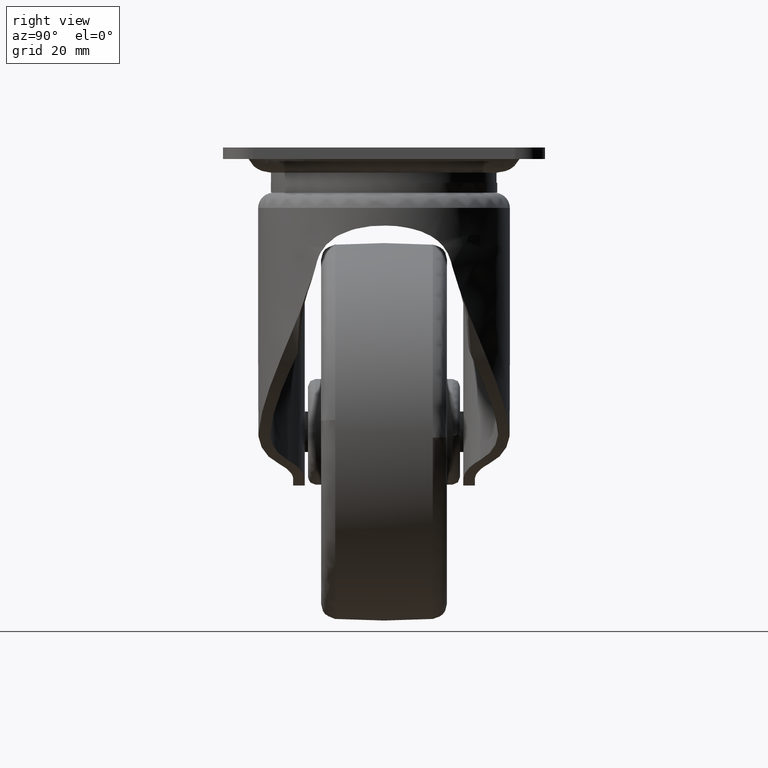
[diagram: clean part render]
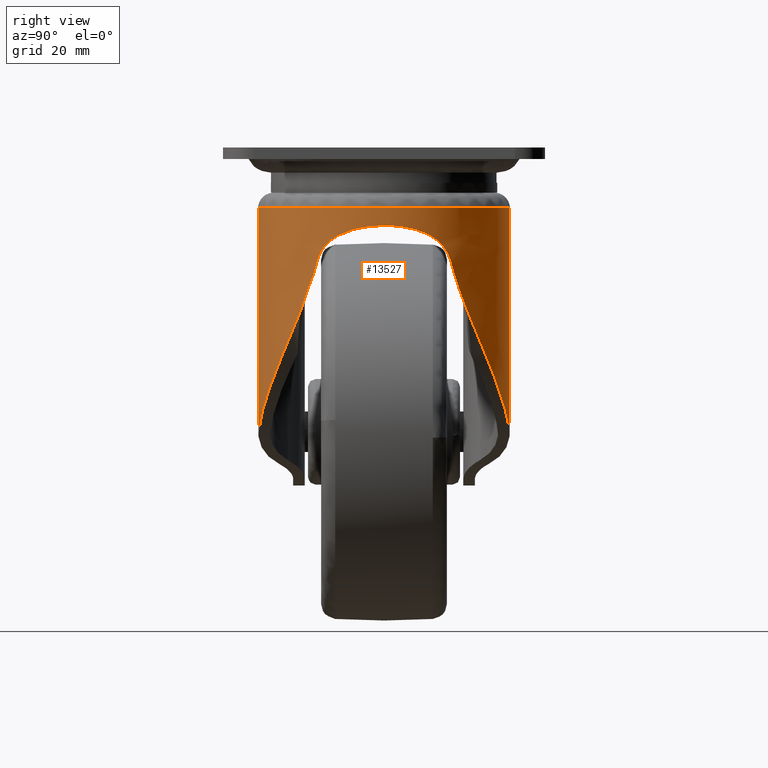
[diagram: same view with one face highlighted and labeled with its STEP entity id]
A machine part, right view. The second image highlights one B-rep face of the part: STEP entity #13527.
In plain terms, the highlighted face is a freeform B-spline surface patch.
Its self-contained STEP definition (entity closure, byte-faithful):
#7843=CARTESIAN_POINT('',(7.653790E-016,-25.0,-41.716169822662103));
#7844=VERTEX_POINT('',#7843);
#7845=CARTESIAN_POINT('',(1.488359608596842,-24.955656386388601,-56.877323111152997));
#7846=VERTEX_POINT('',#7845);
#7847=CARTESIAN_POINT('',(7.653790E-016,-25.0,-41.716169822662103));
#7848=CARTESIAN_POINT('',(0.496031628087031,-24.999999999999979,-46.769922830621191));
#7849=CARTESIAN_POINT('',(0.992062944574895,-24.985255604184150,-51.823677522669051));
#7850=CARTESIAN_POINT('',(1.488359608596832,-24.955656386388601,-56.877323111152997));
#7851=QUASI_UNIFORM_CURVE('',3,(#7847,#7848,#7849,#7850),.UNSPECIFIED.,.F.,.U.);
#7852=EDGE_CURVE('',#7844,#7846,#7851,.T.);
#7895=CARTESIAN_POINT('',(1.488359608609230,24.955656386387851,-56.877323111142900));
#7896=VERTEX_POINT('',#7895);
#7904=CARTESIAN_POINT('',(-4.592274E-015,25.0,-41.716169822662003));
#7905=VERTEX_POINT('',#7904);
#7913=CARTESIAN_POINT('',(1.488359608609230,24.955656386387851,-56.877323111142900));
#7914=CARTESIAN_POINT('',(0.992062944573111,24.985255604184189,-51.823677522650250));
#7915=CARTESIAN_POINT('',(0.496031628088499,24.999999999999641,-46.769922830611549));
#7916=CARTESIAN_POINT('',(-4.592274E-015,25.0,-41.716169822662003));
#7917=QUASI_UNIFORM_CURVE('',3,(#7913,#7914,#7915,#7916),.UNSPECIFIED.,.F.,.U.);
#7918=EDGE_CURVE('',#7896,#7905,#7917,.T.);
#8096=CARTESIAN_POINT('',(18.690029135491798,-16.603698711867551,-32.490432487258737));
#8097=VERTEX_POINT('',#8096);
#8098=CARTESIAN_POINT('',(20.725246967792451,-13.980773359463919,-25.113831304999898));
#8099=VERTEX_POINT('',#8098);
#8100=CARTESIAN_POINT('',(18.690029135491798,-16.603698711867551,-32.490432487258737));
#8101=CARTESIAN_POINT('',(18.742552751650312,-16.544573652720821,-32.341464797130541));
#8102=CARTESIAN_POINT('',(18.791352158325950,-16.489089796606759,-32.190038551120452));
#8103=CARTESIAN_POINT('',(18.885290464308142,-16.381413175482880,-31.884872217573701));
#8104=CARTESIAN_POINT('',(18.930348940905759,-16.329304845412079,-31.731074808991870));
#8105=CARTESIAN_POINT('',(19.062407073013141,-16.175367154058019,-31.267873422957731));
#8106=CARTESIAN_POINT('',(19.146350661715068,-16.075873347708999,-30.956892221726111));
#8107=CARTESIAN_POINT('',(19.312812535816519,-15.875500720663100,-30.335010879632922));
#8108=CARTESIAN_POINT('',(19.395227765904671,-15.774723295864581,-30.024048203463948));
#8109=CARTESIAN_POINT('',(19.561382207833841,-15.568201375888790,-29.404169856059010));
#8110=CARTESIAN_POINT('',(19.645097751330368,-15.462473516057290,-29.095242080023802));
#8111=CARTESIAN_POINT('',(19.814584227224088,-15.244672107415800,-28.480101002270271));
#8112=CARTESIAN_POINT('',(19.900348593343889,-15.132594590757069,-28.173876412490110));
#8113=CARTESIAN_POINT('',(20.072966687800641,-14.902856614295150,-27.563664499838829));
#8114=CARTESIAN_POINT('',(20.159810425854928,-14.785194435634040,-27.259765900474811));
#8115=CARTESIAN_POINT('',(20.331962812285241,-14.547544947184980,-26.652435510805521));
#8116=CARTESIAN_POINT('',(20.417390228526251,-14.427362681325830,-26.349110128534718));
#8117=CARTESIAN_POINT('',(20.540157689227200,-14.251494552441390,-25.890986483545650));
#8118=CARTESIAN_POINT('',(20.580170364423282,-14.193631512032169,-25.737742467199830));
#8119=CARTESIAN_POINT('',(20.637451371021228,-14.110092676330410,-25.505894342611530));
#8120=CARTESIAN_POINT('',(20.656081406565381,-14.082800670055850,-25.428274870378889));
#8121=CARTESIAN_POINT('',(20.691943373925849,-14.030054088035749,-25.271957284358450));
#8122=CARTESIAN_POINT('',(20.709190572376521,-14.004576169815291,-25.193266420292719));
#8123=CARTESIAN_POINT('',(20.725246967792451,-13.980773359463919,-25.113831304999898));
#8124=B_SPLINE_CURVE_WITH_KNOTS('',3,(#8100,#8101,#8102,#8103,#8104,#8105,#8106,#8107,#8108,#8109,#8110,#8111,#8112,#8113,#8114,#8115,#8116,#8117,#8118,#8119,#8120,#8121,#8122,#8123),.UNSPECIFIED.,.F.,.U.,(4,2,2,2,2,2,2,2,2,2,2,4),(0.0,0.062499999999999,0.124999999999998,0.249999999999997,0.374999999999997,0.499999999999998,0.624999999999998,0.749999999999998,0.874999999999999,0.937499999999999,0.968749999999999,1.0),.UNSPECIFIED.);
#8125=EDGE_CURVE('',#8097,#8099,#8124,.T.);
#8192=CARTESIAN_POINT('',(19.866646293860349,15.176177550181899,-28.727393900999399));
#8193=VERTEX_POINT('',#8192);
#8207=CARTESIAN_POINT('',(20.090927415972050,14.877991653022560,-27.881393500693349));
#8208=VERTEX_POINT('',#8207);
#8209=CARTESIAN_POINT('',(20.090927415972050,14.877991653022560,-27.881393500693349));
#8210=CARTESIAN_POINT('',(20.018279330499261,14.976095363056340,-28.164516955197680));
#8211=CARTESIAN_POINT('',(19.943517200647431,15.075547822438759,-28.446495858882720));
#8212=CARTESIAN_POINT('',(19.866646293860349,15.176177550181899,-28.727393900999399));
#8213=B_SPLINE_CURVE_WITH_KNOTS('',3,(#8209,#8210,#8211,#8212),.UNSPECIFIED.,.F.,.U.,(4,4),(0.0,0.025310046325304),.UNSPECIFIED.);
#8214=EDGE_CURVE('',#8208,#8193,#8213,.T.);
#8338=CARTESIAN_POINT('',(18.690029135491748,16.603698711867452,-32.490432487258794));
#8339=VERTEX_POINT('',#8338);
#8353=CARTESIAN_POINT('',(19.866646293860349,15.176177550181899,-28.727393900999399));
#8354=CARTESIAN_POINT('',(19.753694896567740,15.324037390001971,-29.140139670763659));
#8355=CARTESIAN_POINT('',(19.636190515615631,15.474439028472981,-29.550551791149282));
#8356=CARTESIAN_POINT('',(19.309053051922351,15.882955023427041,-30.644972796168780));
#8357=CARTESIAN_POINT('',(19.091143017640938,16.144721004310121,-31.325090004651621));
#8358=CARTESIAN_POINT('',(18.804337434256301,16.474353529605210,-32.163747713854491));
#8359=CARTESIAN_POINT('',(18.747563585790029,16.538937360723331,-32.327240316087959));
#8360=CARTESIAN_POINT('',(18.690029135491748,16.603698711867452,-32.490432487258794));
#8361=B_SPLINE_CURVE_WITH_KNOTS('',3,(#8353,#8354,#8355,#8356,#8357,#8358,#8359,#8360),.UNSPECIFIED.,.F.,.U.,(4,2,2,4),(0.025310046325304,0.062500000000000,0.124999999999999,0.140169963199955),.UNSPECIFIED.);
#8362=EDGE_CURVE('',#8193,#8339,#8361,.T.);
#8949=CARTESIAN_POINT('',(20.991181046369650,13.578303217947740,-23.703313366177401));
#8950=VERTEX_POINT('',#8949);
#8951=CARTESIAN_POINT('',(20.090927415972050,14.877991653022560,-27.881393500693349));
#8952=CARTESIAN_POINT('',(20.099895006649369,14.865868734412610,-27.846361557702760));
#8953=CARTESIAN_POINT('',(20.117808427924441,14.841652317915360,-27.776382677901388));
#8954=CARTESIAN_POINT('',(20.144396667893648,14.805536108792660,-27.671421644870069));
#8955=CARTESIAN_POINT('',(20.170738507037580,14.769630236729281,-27.566627988525219));
#8956=CARTESIAN_POINT('',(20.196817435717652,14.733947475019610,-27.461993104110999));
#8957=CARTESIAN_POINT('',(20.222639556538990,14.698485871234830,-27.357519288825799));
#8958=CARTESIAN_POINT('',(20.248204926675228,14.663247388324420,-27.253205929352230));
#8959=CARTESIAN_POINT('',(20.273515208554919,14.628232928072659,-27.149053189396980));
#8960=CARTESIAN_POINT('',(20.298571627245298,14.593443659796550,-27.045061025223660));
#8961=CARTESIAN_POINT('',(20.323375515669021,14.558880665726161,-26.941229448476879));
#8962=CARTESIAN_POINT('',(20.347928168946758,14.524545035780980,-26.837558456015820));
#8963=CARTESIAN_POINT('',(20.372230883183999,14.490437842370349,-26.734048048646670));
#8964=CARTESIAN_POINT('',(20.396284945017609,14.456560147223509,-26.630698226121719));
#8965=CARTESIAN_POINT('',(20.420091634309951,14.422912999667791,-26.527508988474519));
#8966=CARTESIAN_POINT('',(20.443652223332968,14.389497437190901,-26.424480335663102));
#8967=CARTESIAN_POINT('',(20.466967976892089,14.356314485390561,-26.321612267665380));
#8968=CARTESIAN_POINT('',(20.490040152198791,14.323365158089929,-26.218904784453802));
#8969=CARTESIAN_POINT('',(20.512869998812889,14.290650457405791,-26.116357886002088));
#8970=CARTESIAN_POINT('',(20.535458758566069,14.258171373830880,-26.013971572283278));
#8971=CARTESIAN_POINT('',(20.557807665492462,14.225928886310671,-25.911745843270332));
#8972=CARTESIAN_POINT('',(20.579917945758069,14.193923962321540,-25.809680698936070));
#8973=CARTESIAN_POINT('',(20.601790817591770,14.162157557948060,-25.707776139253181));
#8974=CARTESIAN_POINT('',(20.623427491216781,14.130630617960181,-25.606032164194040));
#8975=CARTESIAN_POINT('',(20.644829168783399,14.099344075889389,-25.504448773731010));
#8976=CARTESIAN_POINT('',(20.665997044302419,14.068298854104940,-25.403025967836172));
#8977=CARTESIAN_POINT('',(20.686932303578988,14.037495863889941,-25.301763746481281));
#8978=CARTESIAN_POINT('',(20.707636124148522,14.006936005515660,-25.200662109638220));
#8979=CARTESIAN_POINT('',(20.728109675211321,13.976620168317639,-25.099721057278309));
#8980=CARTESIAN_POINT('',(20.748354117572909,13.946549230766321,-24.998940589373941));
#8981=CARTESIAN_POINT('',(20.768370603568499,13.916724060555319,-24.898320705892310));
#8982=CARTESIAN_POINT('',(20.788160277051329,13.887145514619251,-24.797861406819401));
#8983=CARTESIAN_POINT('',(20.807724273145460,13.857814439414140,-24.697562692071021));
#8984=CARTESIAN_POINT('',(20.827063718879010,13.828731670218900,-24.597424561822731));
#8985=CARTESIAN_POINT('',(20.846179730548808,13.799898034072070,-24.497447015283871));
#8986=CARTESIAN_POINT('',(20.865073423239359,13.771314339193360,-24.397630055255391));
#8987=CARTESIAN_POINT('',(20.883745875155611,13.742981414651281,-24.297973671182650));
#8988=CARTESIAN_POINT('',(20.902198259972810,13.714899963203919,-24.198477902170939));
#8989=CARTESIAN_POINT('',(20.920431354451619,13.687071108812260,-24.099142602673219));
#8990=CARTESIAN_POINT('',(20.938447369018910,13.659494361141860,-23.999968313739270));
#8991=CARTESIAN_POINT('',(20.956243140817680,13.632175184528389,-23.900953023428201));
#8992=CARTESIAN_POINT('',(20.973835443905450,13.605096854427231,-23.802104212649532));
#8993=CARTESIAN_POINT('',(20.985403914499621,13.587227115030011,-23.736216676903901));
#8994=CARTESIAN_POINT('',(20.991181046369650,13.578303217947740,-23.703313366177401));
#8995=B_SPLINE_CURVE_WITH_KNOTS('',3,(#8951,#8952,#8953,#8954,#8955,#8956,#8957,#8958,#8959,#8960,#8961,#8962,#8963,#8964,#8965,#8966,#8967,#8968,#8969,#8970,#8971,#8972,#8973,#8974,#8975,#8976,#8977,#8978,#8979,#8980,#8981,#8982,#8983,#8984,#8985,#8986,#8987,#8988,#8989,#8990,#8991,#8992,#8993,#8994),.UNSPECIFIED.,.F.,.U.,(4,1,1,1,1,1,1,1,1,1,1,1,1,1,1,1,1,1,1,1,1,1,1,1,1,1,1,1,1,1,1,1,1,1,1,1,1,1,1,1,1,4),(0.0,0.025602768242673,0.051143315691217,0.076621756567065,0.102038205929042,0.127392779679861,0.152685594572864,0.177916768218782,0.203086419092424,0.228194666539478,0.253241630783424,0.278227432932370,0.303152194985956,0.328016039842251,0.352819091305065,0.377561474090583,0.402243313834847,0.426864737100521,0.451425871384384,0.475926845124381,0.500367787706853,0.524748829473873,0.549070101730646,0.573331736752717,0.597533867793489,0.621676629091767,0.645760155878978,0.669784584386833,0.693750051854997,0.717656696538492,0.741504657715349,0.765294075694403,0.789025091822782,0.812697848493892,0.836312489154891,0.859869158314791,0.883368001551952,0.906809165522219,0.930192797966520,0.953519047719207,0.976788064715618,1.0),.UNSPECIFIED.);
#8996=EDGE_CURVE('',#8208,#8950,#8995,.T.);
#8998=CARTESIAN_POINT('',(21.181732983813301,13.279088364885460,-22.541404848049101));
#8999=VERTEX_POINT('',#8998);
#9000=CARTESIAN_POINT('',(20.991181046369650,13.578303217947740,-23.703313366177401));
#9001=CARTESIAN_POINT('',(20.997828582564640,13.568016935844261,-23.665120503643450));
#9002=CARTESIAN_POINT('',(21.011137794215980,13.547422492789639,-23.588653542634031));
#9003=CARTESIAN_POINT('',(21.030829277803200,13.516827480375760,-23.473691781635640));
#9004=CARTESIAN_POINT('',(21.050349642796760,13.486408754596241,-23.358384867075220));
#9005=CARTESIAN_POINT('',(21.069678521739061,13.456190775300520,-23.242722660035799));
#9006=CARTESIAN_POINT('',(21.088822656566329,13.426167717876490,-23.126707927898568));
#9007=CARTESIAN_POINT('',(21.107781049858559,13.396342421791161,-23.010339769619399));
#9008=CARTESIAN_POINT('',(21.126556445649570,13.366713394257239,-22.893619015780409));
#9009=CARTESIAN_POINT('',(21.145144331006811,13.337287764152761,-22.776543240178420));
#9010=CARTESIAN_POINT('',(21.163565516731900,13.308042379401479,-22.659121343044490));
#9011=CARTESIAN_POINT('',(21.175673054130819,13.288746248672940,-22.580671981098039));
#9012=CARTESIAN_POINT('',(21.181732983813301,13.279088364885460,-22.541404848049101));
#9013=B_SPLINE_CURVE_WITH_KNOTS('',3,(#9000,#9001,#9002,#9003,#9004,#9005,#9006,#9007,#9008,#9009,#9010,#9011,#9012),.UNSPECIFIED.,.F.,.U.,(4,1,1,1,1,1,1,1,1,1,4),(0.0,0.099041537550470,0.198293735734670,0.297757478482501,0.397433644096010,0.497323105274003,0.597426729136620,0.697745377250735,0.798279905654867,0.899031164885006,1.0),.UNSPECIFIED.);
#9014=EDGE_CURVE('',#8950,#8999,#9013,.T.);
#9126=CARTESIAN_POINT('',(22.192610962528001,-11.510343985558521,-19.336642248966150));
#9127=VERTEX_POINT('',#9126);
#9128=CARTESIAN_POINT('',(21.181732983813301,-13.279088364885460,-22.541404848049101));
#9129=VERTEX_POINT('',#9128);
#9130=CARTESIAN_POINT('',(22.192610962528001,-11.510343985558521,-19.336642248966150));
#9131=CARTESIAN_POINT('',(22.172954427643450,-11.548105140393970,-19.378698487023431));
#9132=CARTESIAN_POINT('',(22.133771633899510,-11.623377182976750,-19.462532231874668));
#9133=CARTESIAN_POINT('',(22.075922094450959,-11.732784902561001,-19.590981235343332));
#9134=CARTESIAN_POINT('',(22.019068043041290,-11.839149655907571,-19.720859883215610));
#9135=CARTESIAN_POINT('',(21.963300294026890,-11.942272179467061,-19.852389642373801));
#9136=CARTESIAN_POINT('',(21.908648790521141,-12.042230600898661,-19.985511710911869));
#9137=CARTESIAN_POINT('',(21.855157912335269,-12.139029094704810,-20.120241695623459));
#9138=CARTESIAN_POINT('',(21.802866498698421,-12.232691131158830,-20.256575440418249));
#9139=CARTESIAN_POINT('',(21.751813168315781,-12.323234670992591,-20.394513978139461));
#9140=CARTESIAN_POINT('',(21.702034925012558,-12.410678717266221,-20.534057147004471));
#9141=CARTESIAN_POINT('',(21.653567520266929,-12.495041578046150,-20.675204361955490));
#9142=CARTESIAN_POINT('',(21.613936156084669,-12.563417470787490,-20.795265210367869));
#9143=CARTESIAN_POINT('',(21.582559884641530,-12.617204673584450,-20.893312397520681));
#9144=CARTESIAN_POINT('',(21.558957310804601,-12.657490824856390,-20.968687676812621));
#9145=CARTESIAN_POINT('',(21.535779114716959,-12.696885531708530,-21.044373228210119));
#9146=CARTESIAN_POINT('',(21.513029910738702,-12.735391590297651,-21.120369062861400));
#9147=CARTESIAN_POINT('',(21.490714348709538,-12.773011505723479,-21.196675175701159));
#9148=CARTESIAN_POINT('',(21.468836930713749,-12.809747806454791,-21.273291565707510));
#9149=CARTESIAN_POINT('',(21.447402060566102,-12.845602959291410,-21.350218230494882));
#9150=CARTESIAN_POINT('',(21.426414031187289,-12.880579390951571,-21.427455167759831));
#9151=CARTESIAN_POINT('',(21.405877028534359,-12.914679481250690,-21.505002374890040));
#9152=CARTESIAN_POINT('',(21.385795131148701,-12.947905563812091,-21.582859849094859));
#9153=CARTESIAN_POINT('',(21.366172310695781,-12.980259925081141,-21.661027587290231));
#9154=CARTESIAN_POINT('',(21.347012432851159,-13.011744802762600,-21.739505586448090));
#9155=CARTESIAN_POINT('',(21.328319255776108,-13.042362388365600,-21.818293842345110));
#9156=CARTESIAN_POINT('',(21.310096437814590,-13.072114814064459,-21.897392354240178));
#9157=CARTESIAN_POINT('',(21.292347510733450,-13.101004198200281,-21.976801107488111));
#9158=CARTESIAN_POINT('',(21.275075981297359,-13.129032472402310,-22.056520138344951));
#9159=CARTESIAN_POINT('',(21.258284954631669,-13.156202022487189,-22.136549292537751));
#9160=CARTESIAN_POINT('',(21.241978539707439,-13.182513296729439,-22.216889125093051));
#9161=CARTESIAN_POINT('',(21.226156611895199,-13.207973718401449,-22.297537546109361));
#9162=CARTESIAN_POINT('',(21.210834342405771,-13.232564452549340,-22.378502326989722));
#9163=CARTESIAN_POINT('',(21.195969369161780,-13.256364339189950,-22.459754461222499));
#9164=CARTESIAN_POINT('',(21.186478060109000,-13.271514304965670,-22.514190263336641));
#9165=CARTESIAN_POINT('',(21.181732983813301,-13.279088364885460,-22.541404848049101));
#9166=B_SPLINE_CURVE_WITH_KNOTS('',3,(#9130,#9131,#9132,#9133,#9134,#9135,#9136,#9137,#9138,#9139,#9140,#9141,#9142,#9143,#9144,#9145,#9146,#9147,#9148,#9149,#9150,#9151,#9152,#9153,#9154,#9155,#9156,#9157,#9158,#9159,#9160,#9161,#9162,#9163,#9164,#9165),.UNSPECIFIED.,.F.,.U.,(4,1,1,1,1,1,1,1,1,1,1,1,1,1,1,1,1,1,1,1,1,1,1,1,1,1,1,1,1,1,1,1,1,4),(0.0,0.046808289048985,0.093306351137748,0.139512105956674,0.185443859757149,0.231120248245696,0.276560221328984,0.321783026123303,0.366808188257087,0.411655491518119,0.456344955915464,0.500896814248973,0.524081840835009,0.547199137074524,0.570251639743534,0.593242310448211,0.616174134751281,0.639050121256021,0.661873300647810,0.684646724695162,0.707373465210064,0.730056612970966,0.752699276607860,0.775304581452973,0.797875668357402,0.820415692476635,0.842927822027199,0.865415237015883,0.887881127944239,0.910328694492064,0.932761144180117,0.955181691017604,0.977593554134311,0.999999956403295),.UNSPECIFIED.);
#9167=EDGE_CURVE('',#9127,#9129,#9166,.T.);
#9257=CARTESIAN_POINT('',(24.184406601497351,6.333599082153031,-16.330301293270200));
#9258=VERTEX_POINT('',#9257);
#9259=CARTESIAN_POINT('',(21.181732983813301,13.279088364885460,-22.541404848049101));
#9260=CARTESIAN_POINT('',(21.192564868450610,13.261784325153190,-22.480131069551089));
#9261=CARTESIAN_POINT('',(21.214231366717790,13.227171886096921,-22.357568075197161));
#9262=CARTESIAN_POINT('',(21.249869402251409,13.169836642720730,-22.175826808010161));
#9263=CARTESIAN_POINT('',(21.287755834929591,13.108520970231471,-21.995664230670830));
#9264=CARTESIAN_POINT('',(21.328082496883280,13.042814114879500,-21.817226965257088));
#9265=CARTESIAN_POINT('',(21.370748768644109,12.972797454295989,-21.640475963254438));
#9266=CARTESIAN_POINT('',(21.415729203812742,12.898418646789709,-21.465421999931330));
#9267=CARTESIAN_POINT('',(21.462974771256050,12.819659763049600,-21.292062428956299));
#9268=CARTESIAN_POINT('',(21.512439392727959,12.736492110271151,-21.120398178560020));
#9269=CARTESIAN_POINT('',(21.564072716378298,12.648888547323621,-20.950429191917330));
#9270=CARTESIAN_POINT('',(21.617822244231661,12.556819841909739,-20.782155593806358));
#9271=CARTESIAN_POINT('',(21.673631934896651,12.460257160050091,-20.615577604765559));
#9272=CARTESIAN_POINT('',(21.731445535137929,12.359166014781570,-20.450694702212981));
#9273=CARTESIAN_POINT('',(21.832012262521111,12.181361439176030,-20.176027611167910));
#9274=CARTESIAN_POINT('',(21.981483339259999,11.911003678797590,-19.800720109206530));
#9275=CARTESIAN_POINT('',(22.186346087644232,11.525424604358600,-19.341934537504091));
#9276=CARTESIAN_POINT('',(22.402429384909500,11.100151602048530,-18.905619017855312));
#9277=CARTESIAN_POINT('',(22.620142590620979,10.649705854647170,-18.505403596586710));
#9278=CARTESIAN_POINT('',(22.836192078758391,10.178288566194270,-18.139163633227270));
#9279=CARTESIAN_POINT('',(23.048089468349101,9.689450667918504,-17.805191022143649));
#9280=CARTESIAN_POINT('',(23.260533389443349,9.168354765276847,-17.492316867343639));
#9281=CARTESIAN_POINT('',(23.413788386021160,8.766092007663566,-17.280392171622999));
#9282=CARTESIAN_POINT('',(23.510509720439039,8.500650728161659,-17.151047056791150));
#9283=CARTESIAN_POINT('',(23.552599679804590,8.383333067023699,-17.095410669943799));
#9284=CARTESIAN_POINT('',(23.594472370134611,8.264755975528194,-17.040692234229908));
#9285=CARTESIAN_POINT('',(23.636111233264629,8.144916080767167,-16.986891427306411));
#9286=CARTESIAN_POINT('',(23.677499074926779,8.023811112861079,-16.934008331318928));
#9287=CARTESIAN_POINT('',(23.718618642081040,7.901438656820488,-16.882042919298250));
#9288=CARTESIAN_POINT('',(23.759452467517669,7.777796494603058,-16.830995193516529));
#9289=CARTESIAN_POINT('',(23.799982911482520,7.652882517464438,-16.780865149161340));
#9290=CARTESIAN_POINT('',(23.840192153169308,7.526694756528068,-16.731652780360449));
#9291=CARTESIAN_POINT('',(23.880062184590660,7.399231373272754,-16.683358092820630));
#9292=CARTESIAN_POINT('',(23.919574846066819,7.270490691805581,-16.635981046802389));
#9293=CARTESIAN_POINT('',(23.958711691841959,7.140471103618077,-16.589521774212368));
#9294=CARTESIAN_POINT('',(23.997454498619511,7.009171444230169,-16.543979761315899));
#9295=CARTESIAN_POINT('',(24.035783354800241,6.876589596990328,-16.499356923507250));
#9296=CARTESIAN_POINT('',(24.073683851901890,6.742727766089941,-16.455646037522879));
#9297=CARTESIAN_POINT('',(24.111120030717220,6.607572658078801,-16.412874263950730));
#9298=CARTESIAN_POINT('',(24.148136177606101,6.471170071769834,-16.370939389192031));
#9299=CARTESIAN_POINT('',(24.172294324998202,6.379540035848505,-16.343872125959521));
#9300=CARTESIAN_POINT('',(24.184406601497351,6.333599082153031,-16.330301293270200));
#9301=B_SPLINE_CURVE_WITH_KNOTS('',3,(#9259,#9260,#9261,#9262,#9263,#9264,#9265,#9266,#9267,#9268,#9269,#9270,#9271,#9272,#9273,#9274,#9275,#9276,#9277,#9278,#9279,#9280,#9281,#9282,#9283,#9284,#9285,#9286,#9287,#9288,#9289,#9290,#9291,#9292,#9293,#9294,#9295,#9296,#9297,#9298,#9299,#9300),.UNSPECIFIED.,.F.,.U.,(4,1,1,1,1,1,1,1,1,1,1,1,1,1,1,1,1,1,1,1,1,1,1,1,1,1,1,1,1,1,1,1,1,1,1,1,1,1,1,4),(0.0,0.018959568936036,0.037923914558974,0.056906696996119,0.075921536633420,0.094981985126715,0.114101497143559,0.133293403122825,0.152570883313544,0.171946943325217,0.191434391387365,0.211045817478247,0.230793574444785,0.250689761195809,0.311530986446792,0.373355664341608,0.436471251987734,0.501166797395037,0.561305530309879,0.622747628389116,0.685670317432302,0.750238629199703,0.763532652053932,0.776889051296936,0.790309024026765,0.803793750410190,0.817344393695014,0.830962100236660,0.844647999538341,0.858403204304219,0.872228810504857,0.886125897454350,0.900095527898496,0.914138748113303,0.928256588013331,0.942450061269179,0.956720165433486,0.971067882074960,0.985494176919814,1.0),.UNSPECIFIED.);
#9302=EDGE_CURVE('',#8999,#9258,#9301,.T.);
#9304=CARTESIAN_POINT('',(24.987047604006051,0.804644042503096,-15.512029124707650));
#9305=VERTEX_POINT('',#9304);
#9306=CARTESIAN_POINT('',(24.184406601497351,6.333599082153031,-16.330301293270200));
#9307=CARTESIAN_POINT('',(24.204347101485130,6.256593826794695,-16.308106449073900));
#9308=CARTESIAN_POINT('',(24.244367950940660,6.102043252141386,-16.263561100722310));
#9309=CARTESIAN_POINT('',(24.302042309365920,5.867621776293739,-16.200497831603538));
#9310=CARTESIAN_POINT('',(24.358162489885519,5.630303745903810,-16.139881934871031));
#9311=CARTESIAN_POINT('',(24.412469275286700,5.389961705555718,-16.082005203154871));
#9312=CARTESIAN_POINT('',(24.464934069830559,5.146638636293383,-16.026788573373580));
#9313=CARTESIAN_POINT('',(24.515464759288850,4.900333045511795,-15.974253424805051));
#9314=CARTESIAN_POINT('',(24.563985402040650,4.651057214045927,-15.924393936068141));
#9315=CARTESIAN_POINT('',(24.610414657141629,4.398821515475923,-15.877211629343661));
#9316=CARTESIAN_POINT('',(24.654671676735749,4.143638537978267,-15.832706138633339));
#9317=CARTESIAN_POINT('',(24.696674444021362,3.885522690768279,-15.790877230143421));
#9318=CARTESIAN_POINT('',(24.729597697467529,3.668861448263012,-15.758381423138159));
#9319=CARTESIAN_POINT('',(24.754650113291909,3.494722686975189,-15.733794028311531));
#9320=CARTESIAN_POINT('',(24.772750757253750,3.364021085597746,-15.716094171784849));
#9321=CARTESIAN_POINT('',(24.790203872605360,3.232899456299259,-15.699089793061709));
#9322=CARTESIAN_POINT('',(24.807003805966119,3.101360704173188,-15.682780683143109));
#9323=CARTESIAN_POINT('',(24.823144885599849,2.969407887463601,-15.667166897786240));
#9324=CARTESIAN_POINT('',(24.838621444494759,2.837044094379876,-15.652248421612450));
#9325=CARTESIAN_POINT('',(24.853427814743529,2.704272476570818,-15.638025258354199));
#9326=CARTESIAN_POINT('',(24.867558329658369,2.571096240506786,-15.624497406593880));
#9327=CARTESIAN_POINT('',(24.881007323749721,2.437518650163788,-15.611664866331180));
#9328=CARTESIAN_POINT('',(24.893769133527510,2.303543026682025,-15.599527637044559));
#9329=CARTESIAN_POINT('',(24.905838097183910,2.169172748780453,-15.588085718865450));
#9330=CARTESIAN_POINT('',(24.917208557967449,2.034411253166128,-15.577339109808159));
#9331=CARTESIAN_POINT('',(24.927874853904729,1.899262034185066,-15.567287815719119));
#9332=CARTESIAN_POINT('',(24.937831358616460,1.763728646507479,-15.557931813131351));
#9333=CARTESIAN_POINT('',(24.947072330894780,1.627814696381235,-15.549271188309190));
#9334=CARTESIAN_POINT('',(24.955592480239069,1.491523875685371,-15.541305616707451));
#9335=CARTESIAN_POINT('',(24.963384852009991,1.354859835729563,-15.534036311782200));
#9336=CARTESIAN_POINT('',(24.970448747771830,1.217826661019247,-15.527458728736180));
#9337=CARTESIAN_POINT('',(24.976760073350611,1.080427096700773,-15.521589882301409));
#9338=CARTESIAN_POINT('',(24.982382364327439,0.942669186618616,-15.516366063313830));
#9339=CARTESIAN_POINT('',(24.985491381434539,0.850686230980297,-15.513475780769010));
#9340=CARTESIAN_POINT('',(24.987047604006051,0.804644042503096,-15.512029124707650));
#9341=B_SPLINE_CURVE_WITH_KNOTS('',3,(#9306,#9307,#9308,#9309,#9310,#9311,#9312,#9313,#9314,#9315,#9316,#9317,#9318,#9319,#9320,#9321,#9322,#9323,#9324,#9325,#9326,#9327,#9328,#9329,#9330,#9331,#9332,#9333,#9334,#9335,#9336,#9337,#9338,#9339,#9340),.UNSPECIFIED.,.F.,.U.,(4,1,1,1,1,1,1,1,1,1,1,1,1,1,1,1,1,1,1,1,1,1,1,1,1,1,1,1,1,1,1,1,4),(0.0,0.043677939104846,0.087662206389840,0.131960164321508,0.176579020077982,0.221525826466316,0.266807483050449,0.312430737472895,0.358402186953925,0.404728279952060,0.451415317970536,0.498469457494865,0.521899324987102,0.545370052064749,0.568882350024021,0.592436926395058,0.616034484905090,0.639675725442979,0.663361344025287,0.687092032763776,0.710868479834334,0.734691369447342,0.758561381819504,0.782479193147011,0.806445475580200,0.830460897199514,0.854526121992891,0.878641809834513,0.902808616464869,0.927027193472167,0.951298188275069,0.975622244106710,1.000000000000000),.UNSPECIFIED.);
#9342=EDGE_CURVE('',#9258,#9305,#9341,.T.);
#9344=CARTESIAN_POINT('',(23.297137564474252,-9.068813665632259,-17.443544660566900));
#9345=VERTEX_POINT('',#9344);
#9346=CARTESIAN_POINT('',(24.987047604006051,0.804644042503096,-15.512029124707650));
#9347=CARTESIAN_POINT('',(24.989646508728409,0.715346423746177,-15.509613105080261));
#9348=CARTESIAN_POINT('',(24.994846159147080,0.536687930703641,-15.504779511735610));
#9349=CARTESIAN_POINT('',(24.999006050596019,0.268433351728814,-15.500919794619231));
#9350=CARTESIAN_POINT('',(25.002004725727421,-0.275946884252104,-15.498149339248730));
#9351=CARTESIAN_POINT('',(24.984005107883441,-1.093628816154478,-15.514691708100910));
#9352=CARTESIAN_POINT('',(24.912112816943800,-2.187977947647100,-15.582047259262270));
#9353=CARTESIAN_POINT('',(24.793103927299871,-3.270782119949153,-15.695499508088350));
#9354=CARTESIAN_POINT('',(24.649172237169090,-4.203689286032592,-15.837468685075420));
#9355=CARTESIAN_POINT('',(24.502412344793122,-4.977010761197913,-15.987271999940930));
#9356=CARTESIAN_POINT('',(24.367566032096200,-5.599388532068076,-16.129098285092390));
#9357=CARTESIAN_POINT('',(24.221275073009700,-6.201130965768617,-16.288218242005861));
#9358=CARTESIAN_POINT('',(24.105718392068269,-6.630493987958704,-16.418580129933321));
#9359=CARTESIAN_POINT('',(24.029706365030449,-6.897668939363087,-16.506450801140542));
#9360=CARTESIAN_POINT('',(23.997051920366800,-7.010425128628913,-16.544502265521331));
#9361=CARTESIAN_POINT('',(23.964103186632219,-7.122236691772743,-16.583209781764751));
#9362=CARTESIAN_POINT('',(23.930871863981540,-7.233104822285852,-16.622573557637459));
#9363=CARTESIAN_POINT('',(23.897369644967281,-7.343030331385160,-16.662593539967752));
#9364=CARTESIAN_POINT('',(23.863608100726012,-7.452014234271877,-16.703269745041929));
#9365=CARTESIAN_POINT('',(23.829598710960489,-7.560057591637676,-16.744602170687401));
#9366=CARTESIAN_POINT('',(23.795352855687810,-7.667161549346663,-16.786590819671041));
#9367=CARTESIAN_POINT('',(23.760881817193880,-7.773327325419640,-16.829235693451910));
#9368=CARTESIAN_POINT('',(23.726196779277920,-7.878556211007144,-16.872536793905841));
#9369=CARTESIAN_POINT('',(23.691308827321951,-7.982849567856195,-16.916494122625881));
#9370=CARTESIAN_POINT('',(23.656228947878770,-8.086208826000494,-16.961107681990089));
#9371=CARTESIAN_POINT('',(23.620968029477989,-8.188635484119235,-17.006377471588792));
#9372=CARTESIAN_POINT('',(23.585536859186089,-8.290131099159144,-17.052303501361681));
#9373=CARTESIAN_POINT('',(23.549946134950648,-8.390697316094501,-17.098885742889930));
#9374=CARTESIAN_POINT('',(23.514206419516071,-8.490335748845030,-17.146124310013320));
#9375=CARTESIAN_POINT('',(23.478328311106189,-8.589048413287854,-17.194018788967611));
#9376=CARTESIAN_POINT('',(23.442321810235072,-8.686836112702940,-17.242570722828830));
#9377=CARTESIAN_POINT('',(23.406198668266530,-8.783704417980747,-17.291774396236679));
#9378=CARTESIAN_POINT('',(23.369963675516221,-8.879641475820469,-17.341651019171842));
#9379=CARTESIAN_POINT('',(23.333646980430760,-8.974700326733885,-17.392121913231598));
#9380=CARTESIAN_POINT('',(23.309291539706098,-9.037483359189828,-17.426426041134370));
#9381=CARTESIAN_POINT('',(23.297137564474252,-9.068813665632259,-17.443544660566900));
#9382=B_SPLINE_CURVE_WITH_KNOTS('',3,(#9346,#9347,#9348,#9349,#9350,#9351,#9352,#9353,#9354,#9355,#9356,#9357,#9358,#9359,#9360,#9361,#9362,#9363,#9364,#9365,#9366,#9367,#9368,#9369,#9370,#9371,#9372,#9373,#9374,#9375,#9376,#9377,#9378,#9379,#9380,#9381),.UNSPECIFIED.,.F.,.U.,(4,1,1,1,1,1,1,1,1,1,1,1,1,1,1,1,1,1,1,1,1,1,1,1,1,1,1,1,1,1,1,1,1,4),(0.0,0.025850796674344,0.051719905738731,0.077609901502348,0.183325131124536,0.288190892600272,0.395267259709376,0.499929955416667,0.564119115149560,0.626988237059926,0.688600595139992,0.749023412547044,0.760978167416098,0.772876557364182,0.784719185130899,0.796506662009994,0.808239607915438,0.819918651444699,0.831544429938696,0.843117589538460,0.854638785238146,0.866108680934270,0.877527949470916,0.888897272680689,0.900217341421247,0.911488855607070,0.922712524236418,0.933889065413073,0.945019206362688,0.956103683443669,0.967143242152029,0.978138637120423,0.989090632110686,1.0),.UNSPECIFIED.);
#9383=EDGE_CURVE('',#9305,#9345,#9382,.T.);
#9385=CARTESIAN_POINT('',(23.297137564474252,-9.068813665632259,-17.443544660566900));
#9386=CARTESIAN_POINT('',(23.285328621106270,-9.099049164578332,-17.460277484558279));
#9387=CARTESIAN_POINT('',(23.261765646770879,-9.159379565316463,-17.493665323756190));
#9388=CARTESIAN_POINT('',(23.226253035301848,-9.249000678075346,-17.544646063626399));
#9389=CARTESIAN_POINT('',(23.190735095176670,-9.337712818917275,-17.596137086480262));
#9390=CARTESIAN_POINT('',(23.155203063962841,-9.425471548771954,-17.648210463413982));
#9391=CARTESIAN_POINT('',(23.119671567903598,-9.512291792130011,-17.700847018351070));
#9392=CARTESIAN_POINT('',(23.084148872842821,-9.598172722573841,-17.754051857118160));
#9393=CARTESIAN_POINT('',(23.048644801192051,-9.683117749708465,-17.807823623339011));
#9394=CARTESIAN_POINT('',(23.013168625225720,-9.767129197734928,-17.862162680543349));
#9395=CARTESIAN_POINT('',(22.977729628096821,-9.850209719627449,-17.917068934433630));
#9396=CARTESIAN_POINT('',(22.942336954822508,-9.932361918575067,-17.972542412546328));
#9397=CARTESIAN_POINT('',(22.906999652282149,-10.013588446645240,-18.028583109939351));
#9398=CARTESIAN_POINT('',(22.871726658912308,-10.093891976434261,-18.085191030265459));
#9399=CARTESIAN_POINT('',(22.836526807807381,-10.173275206555889,-18.142366174830752));
#9400=CARTESIAN_POINT('',(22.801408826263440,-10.251740858145601,-18.200108545501561));
#9401=CARTESIAN_POINT('',(22.766381336280709,-10.329291673783560,-18.258418143921769));
#9402=CARTESIAN_POINT('',(22.731452854822852,-10.405930415796330,-18.317294971715370));
#9403=CARTESIAN_POINT('',(22.696631794151401,-10.481659864751441,-18.376739030423700));
#9404=CARTESIAN_POINT('',(22.661926462151641,-10.556482817920511,-18.436750321518328));
#9405=CARTESIAN_POINT('',(22.627345062667001,-10.630402087793140,-18.497328846375979));
#9406=CARTESIAN_POINT('',(22.592895695854772,-10.703420500535490,-18.558474606330829));
#9407=CARTESIAN_POINT('',(22.558586358492249,-10.775540894737560,-18.620187602454930));
#9408=CARTESIAN_POINT('',(22.524424944501622,-10.846766119181410,-18.682467836345982));
#9409=CARTESIAN_POINT('',(22.490419244691161,-10.917099034338451,-18.745315307172351));
#9410=CARTESIAN_POINT('',(22.456576949438649,-10.986542500105831,-18.808730022622871));
#9411=CARTESIAN_POINT('',(22.422905640471310,-11.055099414751160,-18.872711958204960));
#9412=CARTESIAN_POINT('',(22.389412823177221,-11.122772563715390,-18.937261208424399));
#9413=CARTESIAN_POINT('',(22.356105808354279,-11.189565174940990,-19.002377425066229));
#9414=CARTESIAN_POINT('',(22.322992153441241,-11.255478848979680,-19.068061904469900));
#9415=CARTESIAN_POINT('',(22.290078024549931,-11.320521245379711,-19.134309830266869));
#9416=CARTESIAN_POINT('',(22.257374286618091,-11.384677506385710,-19.201139106938228));
#9417=CARTESIAN_POINT('',(22.224873865008469,-11.448016483899980,-19.268483170399740));
#9418=CARTESIAN_POINT('',(22.203356559609428,-11.489584966114450,-19.313940943770231));
#9419=CARTESIAN_POINT('',(22.192610962528001,-11.510343985558521,-19.336642248966150));
#9420=B_SPLINE_CURVE_WITH_KNOTS('',3,(#9385,#9386,#9387,#9388,#9389,#9390,#9391,#9392,#9393,#9394,#9395,#9396,#9397,#9398,#9399,#9400,#9401,#9402,#9403,#9404,#9405,#9406,#9407,#9408,#9409,#9410,#9411,#9412,#9413,#9414,#9415,#9416,#9417,#9418,#9419),.UNSPECIFIED.,.F.,.U.,(4,1,1,1,1,1,1,1,1,1,1,1,1,1,1,1,1,1,1,1,1,1,1,1,1,1,1,1,1,1,1,1,4),(0.0,0.033254851233269,0.066355065116280,0.099302939383077,0.132100803785659,0.164751020188090,0.197255982639719,0.229618117426569,0.261839883099551,0.293923770478762,0.325872302633070,0.357688034833753,0.389373554481120,0.420931481003758,0.452364465729081,0.483675191724083,0.514866373606235,0.545940757322942,0.576901119899157,0.607750269152549,0.638491043375180,0.669126310981594,0.699658970122272,0.730091948262370,0.760428201725120,0.790670715199634,0.820822501213005,0.850886599566130,0.880866076733662,0.910764025228056,0.940583562927373,0.970327832367699,1.000000000000000),.UNSPECIFIED.);
#9421=EDGE_CURVE('',#9345,#9127,#9420,.T.);
#9443=CARTESIAN_POINT('',(20.991181046361849,-13.578303217959800,-23.703313366222002));
#9444=VERTEX_POINT('',#9443);
#9445=CARTESIAN_POINT('',(20.991181046361849,-13.578303217959800,-23.703313366222002));
#9446=CARTESIAN_POINT('',(20.984409171157811,-13.588760217308771,-23.741864641299419));
#9447=CARTESIAN_POINT('',(20.970845908091839,-13.609704347077511,-23.819078274104228));
#9448=CARTESIAN_POINT('',(20.950171970386219,-13.641495980773820,-23.934922715756500));
#9449=CARTESIAN_POINT('',(20.929218351267821,-13.673617716945801,-24.050995623350211));
#9450=CARTESIAN_POINT('',(20.907961750549688,-13.706092352093060,-24.167286718119950));
#9451=CARTESIAN_POINT('',(20.886406260374031,-13.738912186131790,-24.283798766248800));
#9452=CARTESIAN_POINT('',(20.864548579837582,-13.772077701704999,-24.400531023417258));
#9453=CARTESIAN_POINT('',(20.842387376174930,-13.805587155068650,-24.517483690010799));
#9454=CARTESIAN_POINT('',(20.819920765741571,-13.839439377076721,-24.634656712186210));
#9455=CARTESIAN_POINT('',(20.797146992061680,-13.873633019214790,-24.752050104515011));
#9456=CARTESIAN_POINT('',(20.774064243520609,-13.908166756300661,-24.869663863156980));
#9457=CARTESIAN_POINT('',(20.750670702589272,-13.943039231735501,-24.987497989226188));
#9458=CARTESIAN_POINT('',(20.734325968102649,-13.967315422059370,-25.068893227687290));
#9459=CARTESIAN_POINT('',(20.725813674015811,-13.979933425681780,-25.111027353135530));
#9460=CARTESIAN_POINT('',(20.725246967792451,-13.980773359463919,-25.113831304999898));
#9461=B_SPLINE_CURVE_WITH_KNOTS('',3,(#9445,#9446,#9447,#9448,#9449,#9450,#9451,#9452,#9453,#9454,#9455,#9456,#9457,#9458,#9459,#9460),.UNSPECIFIED.,.F.,.U.,(4,1,1,1,1,1,1,1,1,1,1,1,1,4),(0.666411959183772,0.693608810096063,0.720884026724244,0.748237851410794,0.775670524415001,0.803182283930434,0.830773366102298,0.858444005044999,0.886194432859369,0.914024879649993,0.941935573542327,0.969926740699740,0.997998605340670,1.0),.UNSPECIFIED.);
#9462=EDGE_CURVE('',#9444,#8099,#9461,.T.);
#9480=CARTESIAN_POINT('',(21.181732983813301,-13.279088364885460,-22.541404848049101));
#9481=CARTESIAN_POINT('',(21.174997893125589,-13.289821236631200,-22.585028587755222));
#9482=CARTESIAN_POINT('',(21.161543096278340,-13.311262464861530,-22.672171362636391));
#9483=CARTESIAN_POINT('',(21.141039963735452,-13.343796028652299,-22.802574222246431));
#9484=CARTESIAN_POINT('',(21.120330732921971,-13.376551997070161,-22.932549749296701));
#9485=CARTESIAN_POINT('',(21.099389777484610,-13.409558645680880,-23.062087046695328));
#9486=CARTESIAN_POINT('',(21.078221886502462,-13.442807811299820,-23.191188798052639));
#9487=CARTESIAN_POINT('',(21.056825955997560,-13.476298547586129,-23.319855126596661));
#9488=CARTESIAN_POINT('',(21.035194122734470,-13.510037257396110,-23.448082876656340));
#9489=CARTESIAN_POINT('',(21.013351267346199,-13.543993819698450,-23.575884503802499));
#9490=CARTESIAN_POINT('',(20.998565300859340,-13.566875757286519,-23.660870525841911));
#9491=CARTESIAN_POINT('',(20.991181046361859,-13.578303217959840,-23.703313366222002));
#9492=B_SPLINE_CURVE_WITH_KNOTS('',3,(#9480,#9481,#9482,#9483,#9484,#9485,#9486,#9487,#9488,#9489,#9490,#9491),.UNSPECIFIED.,.F.,.U.,(4,1,1,1,1,1,1,1,1,4),(0.0,0.112174148937361,0.224079801295126,0.335718117526202,0.447090266440971,0.558197425248847,0.669040779602346,0.779621523639767,0.889940860027201,1.0),.UNSPECIFIED.);
#9493=EDGE_CURVE('',#9129,#9444,#9492,.T.);
#11539=CARTESIAN_POINT('',(-4.592274E-015,25.0,-12.0));
#11540=VERTEX_POINT('',#11539);
#11880=CARTESIAN_POINT('',(1.530758E-015,-25.0,-12.0));
#11881=VERTEX_POINT('',#11880);
#11895=CARTESIAN_POINT('',(0.0,25.0,-12.0));
#11896=CARTESIAN_POINT('',(25.000000000000004,25.000000000000004,-12.0));
#11897=CARTESIAN_POINT('',(25.0,0.0,-12.0));
#11898=CARTESIAN_POINT('',(25.000000000000004,-25.000000000000004,-12.0));
#11899=CARTESIAN_POINT('',(0.0,-25.0,-12.0));
#11907=(BOUNDED_CURVE()B_SPLINE_CURVE(2,(#11895,#11896,#11897,#11898,#11899),.UNSPECIFIED.,.F.,.U.)B_SPLINE_CURVE_WITH_KNOTS((3,2,3),(0.0,0.500000000000000,1.0),.UNSPECIFIED.)CURVE()GEOMETRIC_REPRESENTATION_ITEM()RATIONAL_B_SPLINE_CURVE((1.0,0.707106781186547,1.0,0.707106781186547,1.0))REPRESENTATION_ITEM(''));
#11908=EDGE_CURVE('',#11540,#11881,#11907,.T.);
#13199=CARTESIAN_POINT('',(7.653790E-016,-25.0,-41.716169822662103));
#13200=CARTESIAN_POINT('',(1.530758E-015,-25.0,-12.0));
#13201=QUASI_UNIFORM_CURVE('',1,(#13199,#13200),.UNSPECIFIED.,.F.,.U.);
#13202=EDGE_CURVE('',#7844,#11881,#13201,.T.);
#13216=CARTESIAN_POINT('',(-4.592274E-015,25.0,-41.716169822662003));
#13217=CARTESIAN_POINT('',(-4.592274E-015,25.0,-12.0));
#13218=QUASI_UNIFORM_CURVE('',1,(#13216,#13217),.UNSPECIFIED.,.F.,.U.);
#13219=EDGE_CURVE('',#7905,#11540,#13218,.T.);
#13433=CARTESIAN_POINT('',(-0.834586657716011,24.986065418764159,-57.999256188931831));
#13434=CARTESIAN_POINT('',(-0.834586657716011,24.986065418764159,-10.850018595276699));
#13435=CARTESIAN_POINT('',(25.266197790619355,25.857886015221215,-57.999256188931824));
#13436=CARTESIAN_POINT('',(25.266197790619355,25.857886015221215,-10.850018595276703));
#13437=CARTESIAN_POINT('',(24.998688379657139,-0.256084550089575,-57.999256188931831));
#13438=CARTESIAN_POINT('',(24.998688379657139,-0.256084550089575,-10.850018595276699));
#13439=CARTESIAN_POINT('',(24.731178968694927,-26.370055115400366,-57.999256188931824));
#13440=CARTESIAN_POINT('',(24.731178968694927,-26.370055115400366,-10.850018595276703));
#13441=CARTESIAN_POINT('',(-1.346268286399173,-24.963724916386880,-57.999256188931831));
#13442=CARTESIAN_POINT('',(-1.346268286399173,-24.963724916386880,-10.850018595276699));
#13450=(BOUNDED_SURFACE()B_SPLINE_SURFACE(1,2,((#13433,#13435,#13437,#13439,#13441),(#13434,#13436,#13438,#13440,#13442)),.UNSPECIFIED.,.F.,.F.,.U.)B_SPLINE_SURFACE_WITH_KNOTS((2,2),(3,2,3),(0.0,47.149237593655130),(0.0,42.705195776670237,85.410391553340475),.UNSPECIFIED.)GEOMETRIC_REPRESENTATION_ITEM()RATIONAL_B_SPLINE_SURFACE(((1.0,0.691513055782269,1.0,0.691513055782269,1.0),(1.0,0.691513055782269,1.0,0.691513055782269,1.0)))REPRESENTATION_ITEM('')SURFACE());
#13451=CARTESIAN_POINT('',(18.690029135491748,16.603698711867452,-32.490432487258794));
#13452=CARTESIAN_POINT('',(18.273482814604499,17.072567124167811,-33.671939688565828));
#13453=CARTESIAN_POINT('',(17.817067934089220,17.550740621584609,-34.837699159652303));
#13454=CARTESIAN_POINT('',(17.036196672077232,18.300885207333401,-36.646796890100802));
#13455=CARTESIAN_POINT('',(16.739604158816579,18.572976174709030,-37.298744427627199));
#13456=CARTESIAN_POINT('',(16.273969528366059,18.978948868093489,-38.271006448964499));
#13457=CARTESIAN_POINT('',(16.115444804582260,19.113780202076089,-38.593829164559992));
#13458=CARTESIAN_POINT('',(15.792551078368319,19.381421168990471,-39.235382533315082));
#13459=CARTESIAN_POINT('',(15.628064729209241,19.514333931890310,-39.554359790791857));
#13460=CARTESIAN_POINT('',(14.790368324008821,20.173557668809771,-41.140495718307257));
#13461=CARTESIAN_POINT('',(14.071480952087660,20.683794675977730,-42.381504859264567));
#13462=CARTESIAN_POINT('',(12.532684919551860,21.650813811314571,-44.812256771329118));
#13463=CARTESIAN_POINT('',(11.712799414985399,22.107708768002482,-46.001974407841409));
#13464=CARTESIAN_POINT('',(9.965184786482521,22.948540906375051,-48.332509786958269));
#13465=CARTESIAN_POINT('',(9.037508730775208,23.332613624430451,-49.473315051612353));
#13466=CARTESIAN_POINT('',(7.556724115905674,23.836271842153501,-51.148466970020841));
#13467=CARTESIAN_POINT('',(7.048212157072589,23.992038913527860,-51.700830572459452));
#13468=CARTESIAN_POINT('',(6.392677152048986,24.169241140618791,-52.383748336457003));
#13469=CARTESIAN_POINT('',(6.260481028720291,24.203827854908550,-52.520049663518712));
#13470=CARTESIAN_POINT('',(5.994517305134008,24.271066378300461,-52.791432562911069));
#13471=CARTESIAN_POINT('',(5.593513438441558,24.368951117666040,-53.196378610402647));
#13472=CARTESIAN_POINT('',(5.186330166238225,24.457723973057469,-53.594954464951819));
#13473=CARTESIAN_POINT('',(3.815278921607214,24.732469830372640,-54.909430805113011));
#13474=CARTESIAN_POINT('',(2.674462862681200,24.884917465331199,-55.915940567496392));
#13475=CARTESIAN_POINT('',(1.488359608609230,24.955656386387851,-56.877323111142900));
#13476=B_SPLINE_CURVE_WITH_KNOTS('',3,(#13451,#13452,#13453,#13454,#13455,#13456,#13457,#13458,#13459,#13460,#13461,#13462,#13463,#13464,#13465,#13466,#13467,#13468,#13469,#13470,#13471,#13472,#13473,#13474,#13475),.UNSPECIFIED.,.F.,.U.,(4,2,2,2,2,2,2,2,2,2,1,2,4),(0.140169963199955,0.249999999999999,0.312499999999999,0.343749999999998,0.374999999999998,0.499999999999998,0.624999999999998,0.749999999999998,0.812499999999998,0.828124999999998,0.843749999999999,0.874999999999999,1.0),.UNSPECIFIED.);
#13477=EDGE_CURVE('',#8339,#7896,#13476,.T.);
#13478=ORIENTED_EDGE('',*,*,#13477,.T.);
#13479=ORIENTED_EDGE('',*,*,#7918,.T.);
#13480=ORIENTED_EDGE('',*,*,#13219,.T.);
#13481=ORIENTED_EDGE('',*,*,#11908,.T.);
#13482=ORIENTED_EDGE('',*,*,#13202,.F.);
#13483=ORIENTED_EDGE('',*,*,#7852,.T.);
#13484=CARTESIAN_POINT('',(1.488359608596798,-24.955656386388590,-56.877323111152982));
#13485=CARTESIAN_POINT('',(2.506137666172337,-24.894955929227400,-56.052375065484142));
#13486=CARTESIAN_POINT('',(3.493482728186357,-24.773805194286119,-55.191793893857763));
#13487=CARTESIAN_POINT('',(4.689746807128993,-24.557389727352120,-54.071206120606142));
#13488=CARTESIAN_POINT('',(4.927224651089567,-24.510819986596371,-53.844722562655939));
#13489=CARTESIAN_POINT('',(5.397852945572355,-24.411493660888780,-53.387752718718012));
#13490=CARTESIAN_POINT('',(5.630276069735039,-24.358895256918640,-53.157977577955748));
#13491=CARTESIAN_POINT('',(6.319112679354819,-24.192808063171888,-52.464797747378299));
#13492=CARTESIAN_POINT('',(6.767100292607955,-24.071038695637871,-51.997540237529087));
#13493=CARTESIAN_POINT('',(8.078999694683368,-23.676232068505911,-50.580427653619623));
#13494=CARTESIAN_POINT('',(8.910928299244475,-23.373805508596082,-49.615258982515293));
#13495=CARTESIAN_POINT('',(10.495898253201220,-22.706288709659258,-47.643835839551024));
#13496=CARTESIAN_POINT('',(11.248915997488419,-22.341131008471582,-46.637585505427943));
#13497=CARTESIAN_POINT('',(12.680148956288720,-21.561031243949611,-44.582876417383950));
#13498=CARTESIAN_POINT('',(13.358352363531910,-21.146035611560489,-43.534426420474091));
#13499=CARTESIAN_POINT('',(14.160796150379250,-20.603625345664490,-42.196107455641020));
#13500=CARTESIAN_POINT('',(14.319012873139039,-20.493955078107049,-41.927044268254683));
#13501=CARTESIAN_POINT('',(14.629805210020940,-20.273261304522151,-41.388087200125362));
#13502=CARTESIAN_POINT('',(14.782531884102189,-20.162137349897620,-41.117944661465501));
#13503=CARTESIAN_POINT('',(15.232862937679659,-19.826749920357670,-40.305464391961650));
#13504=CARTESIAN_POINT('',(15.522623061223980,-19.600470078868401,-39.761075989479480));
#13505=CARTESIAN_POINT('',(16.361617280451089,-18.916090928674290,-38.119156531761732));
#13506=CARTESIAN_POINT('',(16.880629739678579,-18.452392472067348,-37.012916452203513));
#13507=CARTESIAN_POINT('',(17.842170356604210,-17.524366046086890,-34.773349833198232));
#13508=CARTESIAN_POINT('',(18.284695009810569,-17.059964917973531,-33.640049303961320));
#13509=CARTESIAN_POINT('',(18.690029135491748,-16.603698711867558,-32.490432487258843));
#13510=B_SPLINE_CURVE_WITH_KNOTS('',3,(#13484,#13485,#13486,#13487,#13488,#13489,#13490,#13491,#13492,#13493,#13494,#13495,#13496,#13497,#13498,#13499,#13500,#13501,#13502,#13503,#13504,#13505,#13506,#13507,#13508,#13509),.UNSPECIFIED.,.F.,.U.,(4,2,2,2,2,2,2,2,2,2,2,2,4),(0.0,0.125000000000000,0.156250000000000,0.187500000000000,0.250000000000000,0.375000000000000,0.499999999999999,0.624999999999999,0.656249999999999,0.687499999999998,0.749999999999999,0.874999999999999,1.0),.UNSPECIFIED.);
#13511=EDGE_CURVE('',#7846,#8097,#13510,.T.);
#13512=ORIENTED_EDGE('',*,*,#13511,.T.);
#13513=ORIENTED_EDGE('',*,*,#8125,.T.);
#13514=ORIENTED_EDGE('',*,*,#9462,.F.);
#13515=ORIENTED_EDGE('',*,*,#9493,.F.);
#13516=ORIENTED_EDGE('',*,*,#9167,.F.);
#13517=ORIENTED_EDGE('',*,*,#9421,.F.);
#13518=ORIENTED_EDGE('',*,*,#9383,.F.);
#13519=ORIENTED_EDGE('',*,*,#9342,.F.);
#13520=ORIENTED_EDGE('',*,*,#9302,.F.);
#13521=ORIENTED_EDGE('',*,*,#9014,.F.);
#13522=ORIENTED_EDGE('',*,*,#8996,.F.);
#13523=ORIENTED_EDGE('',*,*,#8214,.T.);
#13524=ORIENTED_EDGE('',*,*,#8362,.T.);
#13525=EDGE_LOOP('',(#13478,#13479,#13480,#13481,#13482,#13483,#13512,#13513,#13514,#13515,#13516,#13517,#13518,#13519,#13520,#13521,#13522,#13523,#13524));
#13526=FACE_OUTER_BOUND('',#13525,.T.);
#13527=ADVANCED_FACE('',(#13526),#13450,.T.);